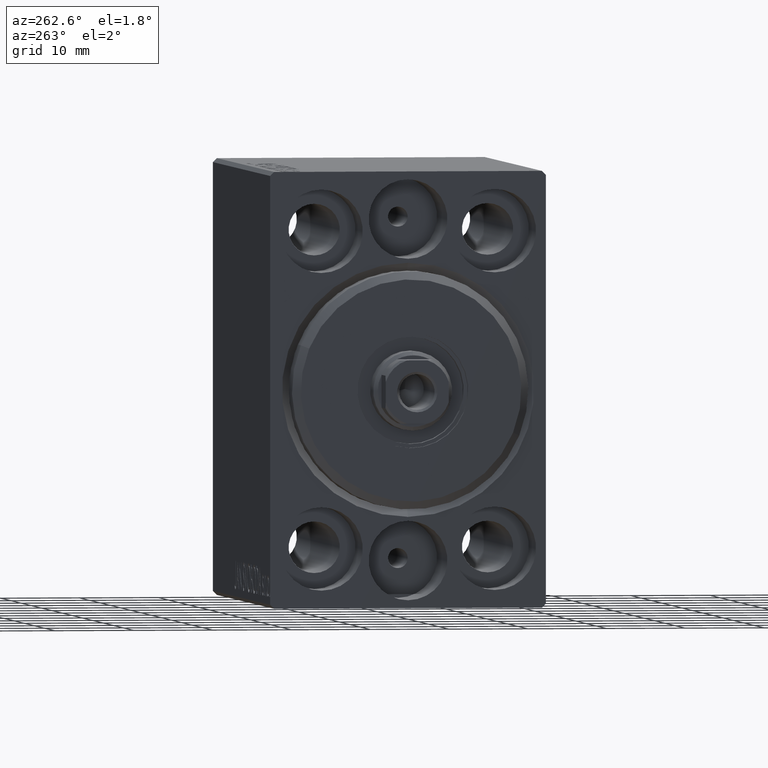
[diagram: clean part render]
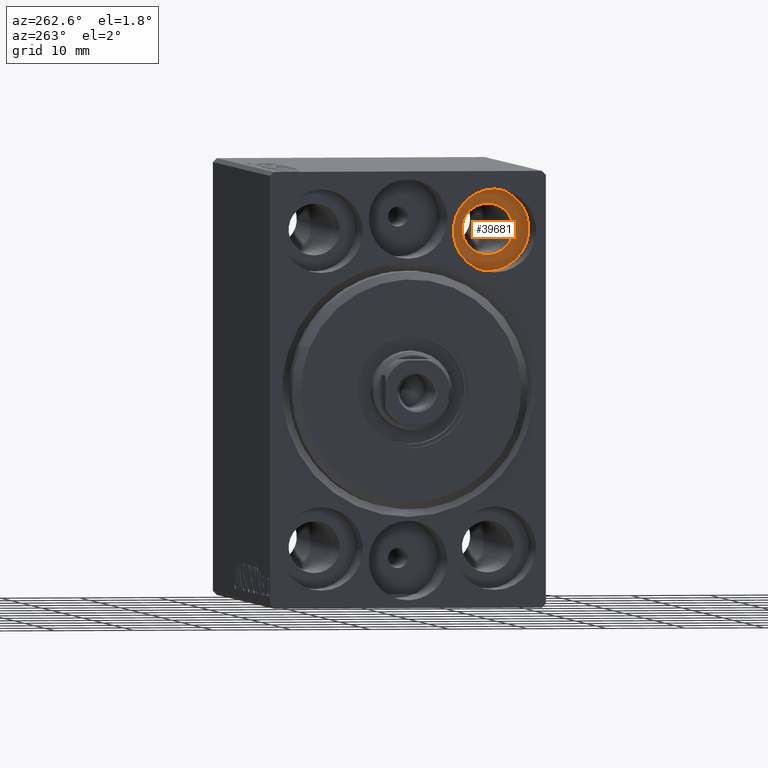
[diagram: same view with one face highlighted and labeled with its STEP entity id]
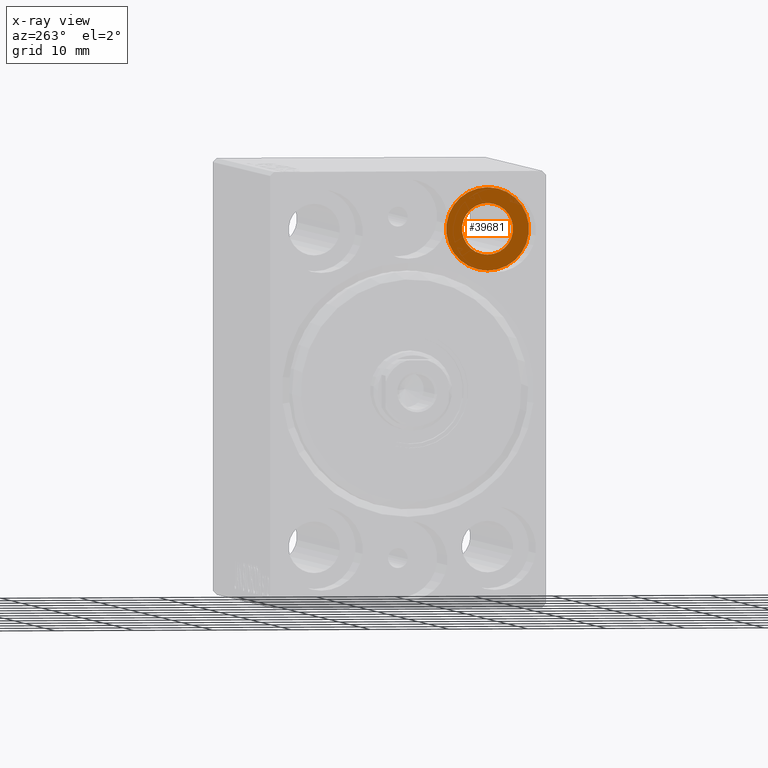
[diagram: x-ray of the same camera — body ghosted, the highlighted face saturated]
A machine part, auxiliary view. The second image highlights one B-rep face of the part: STEP entity #39681.
The next image is the same camera in x-ray: the body ghosted, the highlighted face saturated — about 0% of this face is hidden behind the body in this view.
In plain terms, the highlighted planar face has unit normal (-1, 0, 0).
Its self-contained STEP definition (entity closure, byte-faithful):
#1919 = AXIS2_PLACEMENT_3D ( 'NONE', #32621, #43446, #16215 ) ;
#2000 = DIRECTION ( 'NONE',  ( -1.000000000000000000, 0.000000000000000000, 0.000000000000000000 ) ) ;
#2504 = VERTEX_POINT ( 'NONE', #19444 ) ;
#2701 = VERTEX_POINT ( 'NONE', #4770 ) ;
#2964 = VERTEX_POINT ( 'NONE', #23104 ) ;
#3418 = EDGE_LOOP ( 'NONE', ( #42120, #19385 ) ) ;
#4770 = CARTESIAN_POINT ( 'NONE',  ( 6.999999999999999112, -11.00000000000000355, 23.25000000000000000 ) ) ;
#6132 = AXIS2_PLACEMENT_3D ( 'NONE', #29913, #2000, #42751 ) ;
#6952 = CARTESIAN_POINT ( 'NONE',  ( 7.000000000000000000, 0.000000000000000000, 0.000000000000000000 ) ) ;
#10035 = DIRECTION ( 'NONE',  ( -1.000000000000000000, 0.000000000000000000, 0.000000000000000000 ) ) ;
#12081 = DIRECTION ( 'NONE',  ( 0.000000000000000000, 0.000000000000000000, 1.000000000000000000 ) ) ;
#14249 = FACE_BOUND ( 'NONE', #26137, .T. ) ;
#16215 = DIRECTION ( 'NONE',  ( 0.000000000000000000, 0.000000000000000000, 1.000000000000000000 ) ) ;
#18096 = DIRECTION ( 'NONE',  ( 0.000000000000000000, 0.000000000000000000, 1.000000000000000000 ) ) ;
#19385 = ORIENTED_EDGE ( 'NONE', *, *, #37533, .T. ) ;
#19444 = CARTESIAN_POINT ( 'NONE',  ( 6.999999999999999112, -11.00000000000000355, 16.75000000000000000 ) ) ;
#20479 = DIRECTION ( 'NONE',  ( 0.000000000000000000, 0.000000000000000000, 1.000000000000000000 ) ) ;
#20864 = CARTESIAN_POINT ( 'NONE',  ( 7.000000000000000000, -11.00000000000000355, 14.75000000000000000 ) ) ;
#21644 = CARTESIAN_POINT ( 'NONE',  ( 6.999999999999999112, -11.00000000000000355, 20.00000000000000000 ) ) ;
#21682 = ORIENTED_EDGE ( 'NONE', *, *, #29287, .F. ) ;
#21765 = CIRCLE ( 'NONE', #1919, 5.250000000000000888 ) ;
#22495 = CIRCLE ( 'NONE', #28851, 5.250000000000000888 ) ;
#22727 = CARTESIAN_POINT ( 'NONE',  ( 7.000000000000000000, -11.00000000000000355, 20.00000000000000000 ) ) ;
#23104 = CARTESIAN_POINT ( 'NONE',  ( 7.000000000000000000, -11.00000000000000355, 25.25000000000000000 ) ) ;
#24013 = CIRCLE ( 'NONE', #38139, 3.249999999999999556 ) ;
#26137 = EDGE_LOOP ( 'NONE', ( #21682, #41247 ) ) ;
#27119 = PLANE ( 'NONE',  #43758 ) ;
#28851 = AXIS2_PLACEMENT_3D ( 'NONE', #22727, #36440, #12081 ) ;
#29287 = EDGE_CURVE ( 'NONE', #2701, #2504, #29485, .T. ) ;
#29485 = CIRCLE ( 'NONE', #6132, 3.249999999999999556 ) ;
#29913 = CARTESIAN_POINT ( 'NONE',  ( 6.999999999999999112, -11.00000000000000355, 20.00000000000000000 ) ) ;
#31831 = EDGE_CURVE ( 'NONE', #2964, #40709, #21765, .T. ) ;
#32621 = CARTESIAN_POINT ( 'NONE',  ( 7.000000000000000000, -11.00000000000000355, 20.00000000000000000 ) ) ;
#35377 = DIRECTION ( 'NONE',  ( -1.000000000000000000, 0.000000000000000000, 0.000000000000000000 ) ) ;
#36440 = DIRECTION ( 'NONE',  ( -1.000000000000000000, 0.000000000000000000, 0.000000000000000000 ) ) ;
#37533 = EDGE_CURVE ( 'NONE', #40709, #2964, #22495, .T. ) ;
#38139 = AXIS2_PLACEMENT_3D ( 'NONE', #21644, #35377, #18096 ) ;
#39681 = ADVANCED_FACE ( 'NONE', ( #14249, #41051 ), #27119, .T. ) ;
#40709 = VERTEX_POINT ( 'NONE', #20864 ) ;
#41051 = FACE_OUTER_BOUND ( 'NONE', #3418, .T. ) ;
#41247 = ORIENTED_EDGE ( 'NONE', *, *, #42052, .F. ) ;
#42052 = EDGE_CURVE ( 'NONE', #2504, #2701, #24013, .T. ) ;
#42120 = ORIENTED_EDGE ( 'NONE', *, *, #31831, .T. ) ;
#42751 = DIRECTION ( 'NONE',  ( 0.000000000000000000, 0.000000000000000000, 1.000000000000000000 ) ) ;
#43446 = DIRECTION ( 'NONE',  ( -1.000000000000000000, 0.000000000000000000, 0.000000000000000000 ) ) ;
#43758 = AXIS2_PLACEMENT_3D ( 'NONE', #6952, #10035, #20479 ) ;